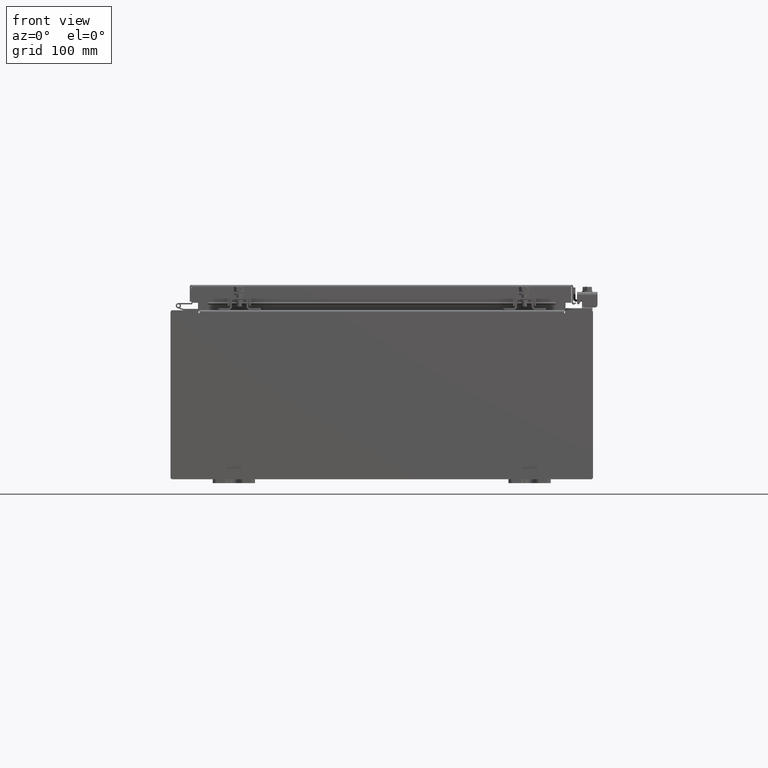
[diagram: clean part render]
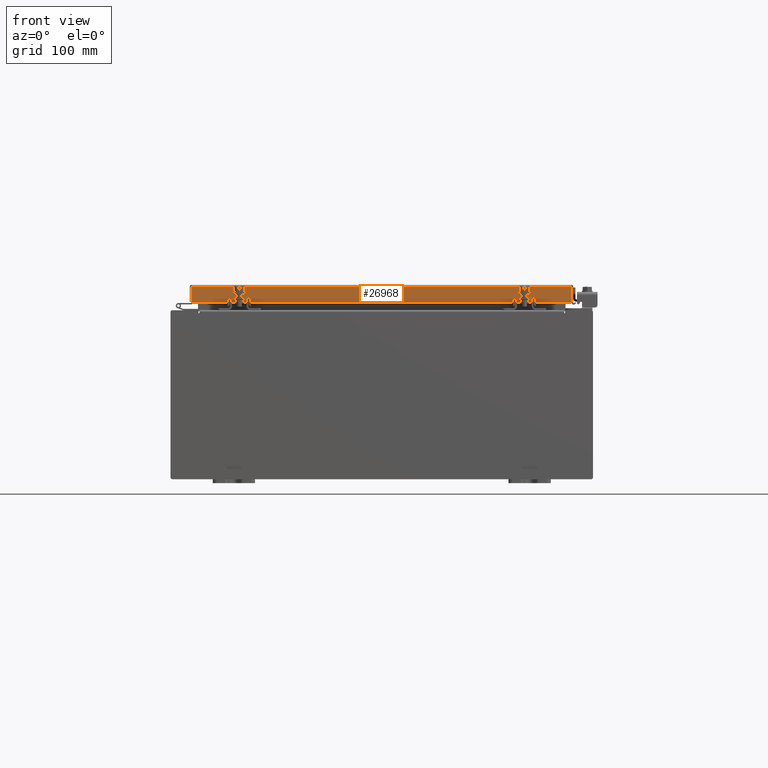
[diagram: same view with one face highlighted and labeled with its STEP entity id]
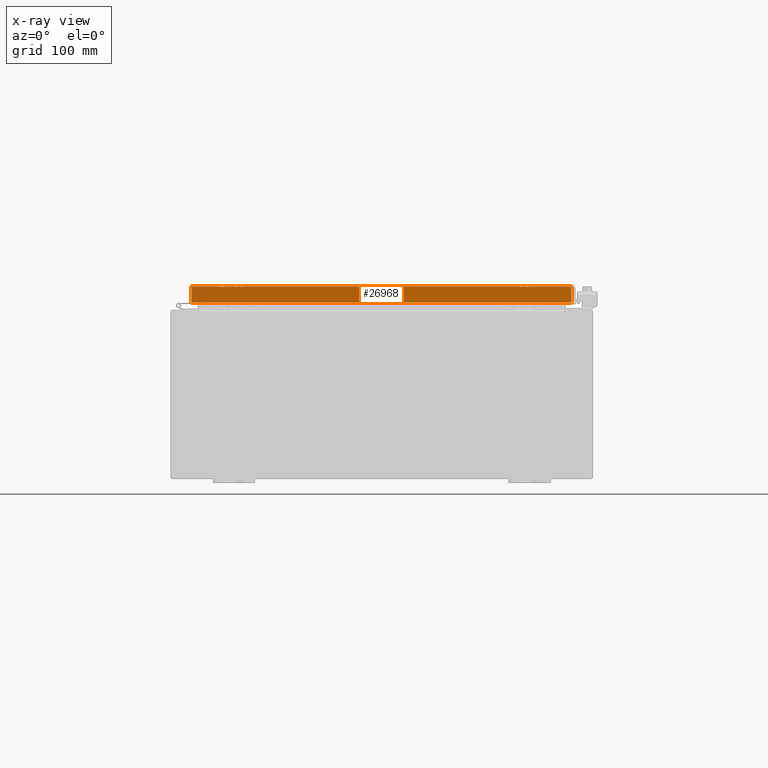
[diagram: x-ray of the same camera — body ghosted, the highlighted face saturated]
A machine part, front view. The second image highlights one B-rep face of the part: STEP entity #26968.
The next image is the same camera in x-ray: the body ghosted, the highlighted face saturated — about 0% of this face is hidden behind the body in this view.
In plain terms, the highlighted planar face has unit normal (-0, 1, -0).
Its self-contained STEP definition (entity closure, byte-faithful):
#125 = VERTEX_POINT ( 'NONE', #22994 ) ;
#756 = ORIENTED_EDGE ( 'NONE', *, *, #27529, .T. ) ;
#905 = LINE ( 'NONE', #23723, #12698 ) ;
#2000 = EDGE_LOOP ( 'NONE', ( #18992, #756, #10667, #6001, #28640, #4190 ) ) ;
#2398 = DIRECTION ( 'NONE',  ( -1.000000000000000000, 0.0000000000000000000, 0.0000000000000000000 ) ) ;
#3217 = EDGE_CURVE ( 'NONE', #9320, #22537, #31135, .T. ) ;
#3237 = EDGE_CURVE ( 'NONE', #125, #9320, #8007, .T. ) ;
#3282 = DIRECTION ( 'NONE',  ( -0.0000000000000000000, -2.818880942772360100E-015, -1.000000000000000000 ) ) ;
#3712 = LINE ( 'NONE', #8867, #26366 ) ;
#4190 = ORIENTED_EDGE ( 'NONE', *, *, #3237, .F. ) ;
#5976 = VECTOR ( 'NONE', #3282, 39.37007874015748100 ) ;
#6001 = ORIENTED_EDGE ( 'NONE', *, *, #31204, .F. ) ;
#6004 = CARTESIAN_POINT ( 'NONE',  ( 8.239157864376267100, -11.09399999999999900, -0.8500000000000017500 ) ) ;
#7118 = DIRECTION ( 'NONE',  ( -1.203722403024574200E-016, 1.000000000000000000, -2.818880942772360100E-015 ) ) ;
#8007 = LINE ( 'NONE', #9298, #5976 ) ;
#8867 = CARTESIAN_POINT ( 'NONE',  ( 9.077999999999999400, -11.09400000000000100, -0.08770000000000007000 ) ) ;
#9298 = CARTESIAN_POINT ( 'NONE',  ( 8.989157864376267100, -11.09400000000000100, -0.07469999999999978000 ) ) ;
#9320 = VERTEX_POINT ( 'NONE', #13882 ) ;
#10667 = ORIENTED_EDGE ( 'NONE', *, *, #16251, .F. ) ;
#11296 = CARTESIAN_POINT ( 'NONE',  ( -8.989157864376267100, -11.09400000000000700, -0.8499999999999975400 ) ) ;
#12313 = VERTEX_POINT ( 'NONE', #17115 ) ;
#12325 = CARTESIAN_POINT ( 'NONE',  ( 9.077999999999999400, -11.09400000000000300, -0.8499999999999996400 ) ) ;
#12332 = AXIS2_PLACEMENT_3D ( 'NONE', #19605, #7118, #14624 ) ;
#12698 = VECTOR ( 'NONE', #27964, 39.37007874015748100 ) ;
#12785 = LINE ( 'NONE', #28780, #17210 ) ;
#13882 = CARTESIAN_POINT ( 'NONE',  ( 8.989157864376267100, -11.09400000000000300, -0.8499999999999996400 ) ) ;
#14387 = PLANE ( 'NONE',  #12332 ) ;
#14416 = VERTEX_POINT ( 'NONE', #20781 ) ;
#14624 = DIRECTION ( 'NONE',  ( 0.0000000000000000000, 2.818880942772360100E-015, 1.000000000000000000 ) ) ;
#16251 = EDGE_CURVE ( 'NONE', #14416, #17402, #19750, .T. ) ;
#16946 = VECTOR ( 'NONE', #17818, 39.37007874015748100 ) ;
#17115 = CARTESIAN_POINT ( 'NONE',  ( -8.989157864376267100, -11.09400000000000100, -0.08769999999999789100 ) ) ;
#17210 = VECTOR ( 'NONE', #2398, 39.37007874015748100 ) ;
#17402 = VERTEX_POINT ( 'NONE', #11296 ) ;
#17818 = DIRECTION ( 'NONE',  ( -1.000000000000000000, -1.203722403024570700E-016, 1.203722403024570700E-016 ) ) ;
#18992 = ORIENTED_EDGE ( 'NONE', *, *, #31480, .F. ) ;
#19605 = CARTESIAN_POINT ( 'NONE',  ( 1.335409633915462800E-015, -11.09400000000000100, 3.153347883512815000E-014 ) ) ;
#19750 = LINE ( 'NONE', #29629, #23227 ) ;
#20781 = CARTESIAN_POINT ( 'NONE',  ( -8.239157864376267100, -11.09399999999999900, -0.8500000000000017500 ) ) ;
#22537 = VERTEX_POINT ( 'NONE', #6004 ) ;
#22994 = CARTESIAN_POINT ( 'NONE',  ( 8.989157864376267100, -11.09400000000000100, -0.08769999999999897300 ) ) ;
#23227 = VECTOR ( 'NONE', #30524, 39.37007874015748100 ) ;
#23723 = CARTESIAN_POINT ( 'NONE',  ( -8.989157864376267100, -11.09400000000000100, 3.153347883512815000E-014 ) ) ;
#24320 = FACE_OUTER_BOUND ( 'NONE', #2000, .T. ) ;
#26366 = VECTOR ( 'NONE', #29366, 39.37007874015748100 ) ;
#26968 = ADVANCED_FACE ( 'NONE', ( #24320 ), #14387, .F. ) ;
#27529 = EDGE_CURVE ( 'NONE', #12313, #17402, #905, .T. ) ;
#27964 = DIRECTION ( 'NONE',  ( 0.0000000000000000000, -2.818880942772360100E-015, -1.000000000000000000 ) ) ;
#28640 = ORIENTED_EDGE ( 'NONE', *, *, #3217, .F. ) ;
#28780 = CARTESIAN_POINT ( 'NONE',  ( 8.239157864376267100, -11.09399999999999900, -0.8500000000000017500 ) ) ;
#29366 = DIRECTION ( 'NONE',  ( 1.000000000000000000, 1.203722403024570700E-016, -1.203722403024570700E-016 ) ) ;
#29629 = CARTESIAN_POINT ( 'NONE',  ( 9.077999999999999400, -11.09400000000000300, -0.8499999999999996400 ) ) ;
#30524 = DIRECTION ( 'NONE',  ( -1.000000000000000000, -1.203722403024570700E-016, 1.203722403024570700E-016 ) ) ;
#31135 = LINE ( 'NONE', #12325, #16946 ) ;
#31204 = EDGE_CURVE ( 'NONE', #22537, #14416, #12785, .T. ) ;
#31480 = EDGE_CURVE ( 'NONE', #12313, #125, #3712, .T. ) ;